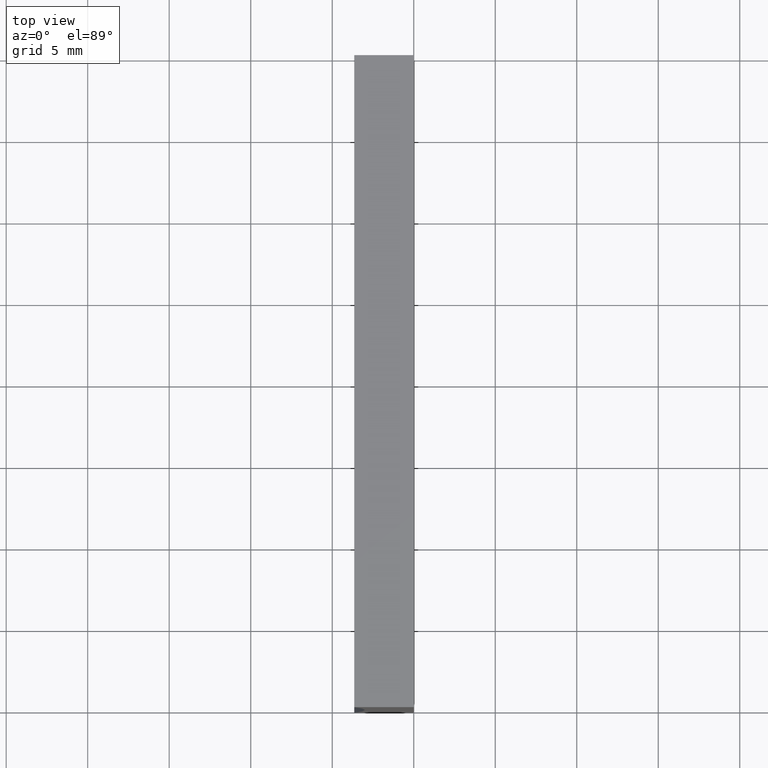
[diagram: clean part render]
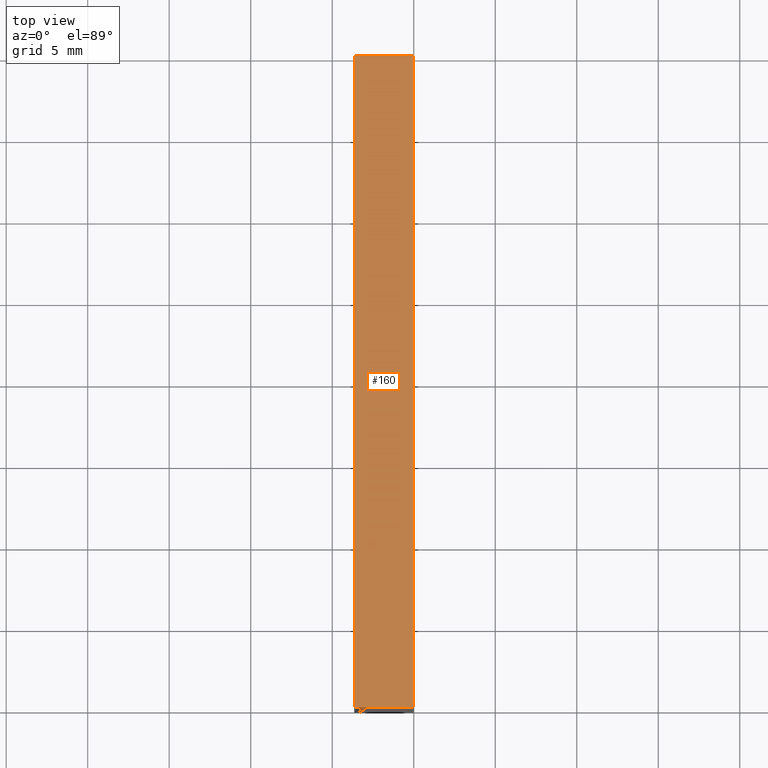
[diagram: same view with one face highlighted and labeled with its STEP entity id]
A machine part, top view. The second image highlights one B-rep face of the part: STEP entity #160.
In plain terms, the highlighted planar face has unit normal (-0, 0, -1).
Its self-contained STEP definition (entity closure, byte-faithful):
#2 = EDGE_CURVE ( 'NONE', #58, #117, #200, .T. ) ;
#3 = CARTESIAN_POINT ( 'NONE',  ( -3.647448026739704500, 0.0000000000000000000, 20.00000000000000400 ) ) ;
#5 = VECTOR ( 'NONE', #43, 1000.000000000000000 ) ;
#12 = LINE ( 'NONE', #52, #54 ) ;
#16 = LINE ( 'NONE', #134, #50 ) ;
#24 = EDGE_CURVE ( 'NONE', #36, #97, #16, .T. ) ;
#29 = VECTOR ( 'NONE', #67, 1000.000000000000000 ) ;
#34 = AXIS2_PLACEMENT_3D ( 'NONE', #202, #143, #190 ) ;
#36 = VERTEX_POINT ( 'NONE', #166 ) ;
#37 = DIRECTION ( 'NONE',  ( 1.000000000000000000, -0.0000000000000000000, -9.511984616419061300E-016 ) ) ;
#42 = ORIENTED_EDGE ( 'NONE', *, *, #24, .F. ) ;
#43 = DIRECTION ( 'NONE',  ( -0.0000000000000000000, -1.000000000000000000, -0.0000000000000000000 ) ) ;
#50 = VECTOR ( 'NONE', #124, 1000.000000000000000 ) ;
#52 = CARTESIAN_POINT ( 'NONE',  ( 1.224646799147353300E-015, 40.00000000000000000, 20.00000000000000000 ) ) ;
#54 = VECTOR ( 'NONE', #37, 1000.000000000000000 ) ;
#57 = CARTESIAN_POINT ( 'NONE',  ( 1.224646799147353300E-015, 0.0000000000000000000, 20.00000000000000000 ) ) ;
#58 = VERTEX_POINT ( 'NONE', #169 ) ;
#67 = DIRECTION ( 'NONE',  ( 1.000000000000000000, -0.0000000000000000000, -9.511984616419061300E-016 ) ) ;
#84 = ORIENTED_EDGE ( 'NONE', *, *, #2, .T. ) ;
#89 = ORIENTED_EDGE ( 'NONE', *, *, #172, .F. ) ;
#97 = VERTEX_POINT ( 'NONE', #135 ) ;
#107 = ORIENTED_EDGE ( 'NONE', *, *, #113, .T. ) ;
#113 = EDGE_CURVE ( 'NONE', #117, #97, #183, .T. ) ;
#117 = VERTEX_POINT ( 'NONE', #3 ) ;
#118 = PLANE ( 'NONE',  #34 ) ;
#124 = DIRECTION ( 'NONE',  ( -0.0000000000000000000, -1.000000000000000000, -0.0000000000000000000 ) ) ;
#134 = CARTESIAN_POINT ( 'NONE',  ( 1.224646799147353300E-015, 40.00000000000000000, 20.00000000000000000 ) ) ;
#135 = CARTESIAN_POINT ( 'NONE',  ( 1.224646799147353300E-015, 0.0000000000000000000, 20.00000000000000000 ) ) ;
#142 = CARTESIAN_POINT ( 'NONE',  ( -3.647448026739704500, 40.00000000000000000, 20.00000000000000400 ) ) ;
#143 = DIRECTION ( 'NONE',  ( -9.511984616419061300E-016, 0.0000000000000000000, -1.000000000000000000 ) ) ;
#154 = EDGE_LOOP ( 'NONE', ( #107, #42, #89, #84 ) ) ;
#160 = ADVANCED_FACE ( 'NONE', ( #182 ), #118, .F. ) ;
#166 = CARTESIAN_POINT ( 'NONE',  ( 1.224646799147353300E-015, 40.00000000000000000, 20.00000000000000000 ) ) ;
#169 = CARTESIAN_POINT ( 'NONE',  ( -3.647448026739704500, 40.00000000000000000, 20.00000000000000400 ) ) ;
#172 = EDGE_CURVE ( 'NONE', #58, #36, #12, .T. ) ;
#182 = FACE_OUTER_BOUND ( 'NONE', #154, .T. ) ;
#183 = LINE ( 'NONE', #57, #29 ) ;
#190 = DIRECTION ( 'NONE',  ( -1.000000000000000000, 0.0000000000000000000, 9.511984616419061300E-016 ) ) ;
#200 = LINE ( 'NONE', #142, #5 ) ;
#202 = CARTESIAN_POINT ( 'NONE',  ( 1.224646799147353300E-015, 40.00000000000000000, 20.00000000000000000 ) ) ;